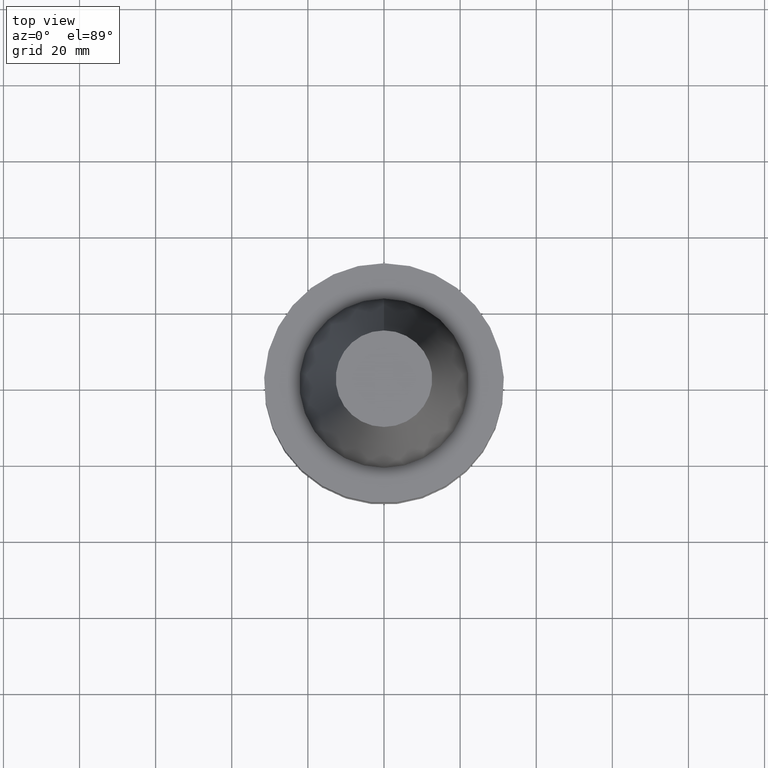
[diagram: clean part render]
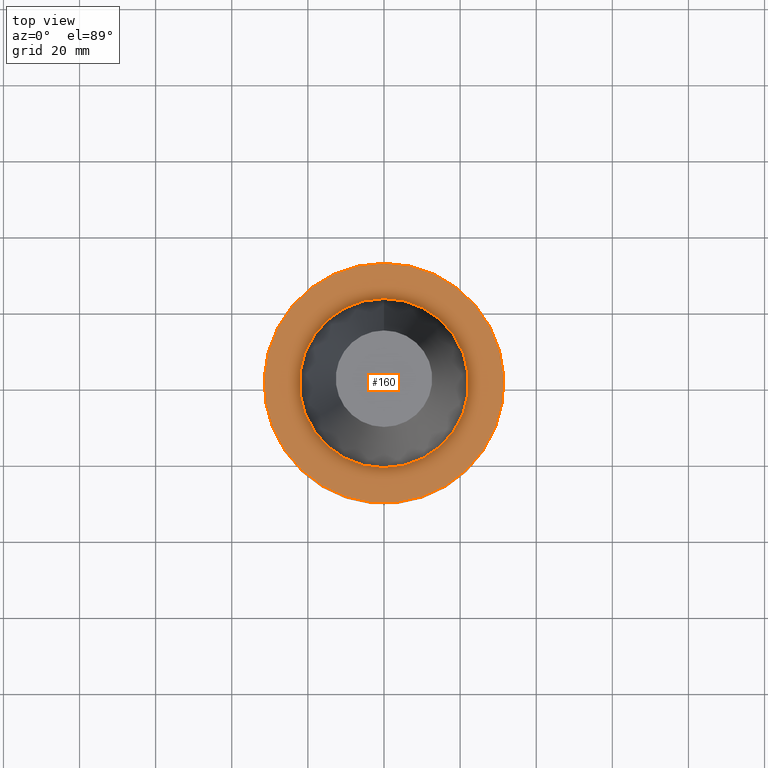
[diagram: same view with one face highlighted and labeled with its STEP entity id]
A machine part, top view. The second image highlights one B-rep face of the part: STEP entity #160.
In plain terms, the highlighted planar face has unit normal (-0, -0, 1).
Its self-contained STEP definition (entity closure, byte-faithful):
#157=EDGE_CURVE('Unnamed[1]',#327,#327,#328,.T.);
#160=ADVANCED_FACE('Unnamed[1]',(#331,#332),#333,.T.);
#169=EDGE_CURVE('Unnamed[1]',#346,#346,#347,.T.);
#327=VERTEX_POINT('',#534);
#328=CIRCLE('',#535,22.225);
#331=FACE_OUTER_BOUND('',#539,.T.);
#332=FACE_BOUND('',#540,.T.);
#333=PLANE('',#541);
#346=VERTEX_POINT('',#558);
#347=CIRCLE('',#559,31.4999999999996);
#534=CARTESIAN_POINT('',(6.12323399573622E-017,22.2250000000001,-0.999999999999912));
#535=AXIS2_PLACEMENT_3D('',#721,#722,#723);
#539=EDGE_LOOP('',(#725));
#540=EDGE_LOOP('',(#726));
#541=AXIS2_PLACEMENT_3D('',#727,#728,#729);
#558=CARTESIAN_POINT('',(6.12323399573568E-017,31.4999999999997,-0.999999999999825));
#559=AXIS2_PLACEMENT_3D('',#742,#743,#744);
#721=CARTESIAN_POINT('',(6.12323399573624E-017,6.83218552010903E-014,-0.999999999999915));
#722=DIRECTION('',(6.12323399573677E-017,-1.31253561610879E-016,-1.0));
#723=DIRECTION('',(3.20980997440837E-033,1.0,-1.31253561610879E-016));
#725=ORIENTED_EDGE('',*,*,#169,.F.);
#726=ORIENTED_EDGE('',*,*,#157,.T.);
#727=CARTESIAN_POINT('',(6.12323399573595E-017,26.8624999999999,-0.999999999999869));
#728=DIRECTION('',(-6.12323399573677E-017,-9.35138060429241E-015,1.0));
#729=DIRECTION('',(5.77434068963536E-031,-1.0,-9.35138060429241E-015));
#742=CARTESIAN_POINT('',(6.12323399573563E-017,6.83218552010903E-014,-0.999999999999815));
#743=DIRECTION('',(6.12323399573677E-017,-1.31253561610755E-016,-1.0));
#744=DIRECTION('',(3.20980997439137E-033,1.0,-1.31253561610755E-016));